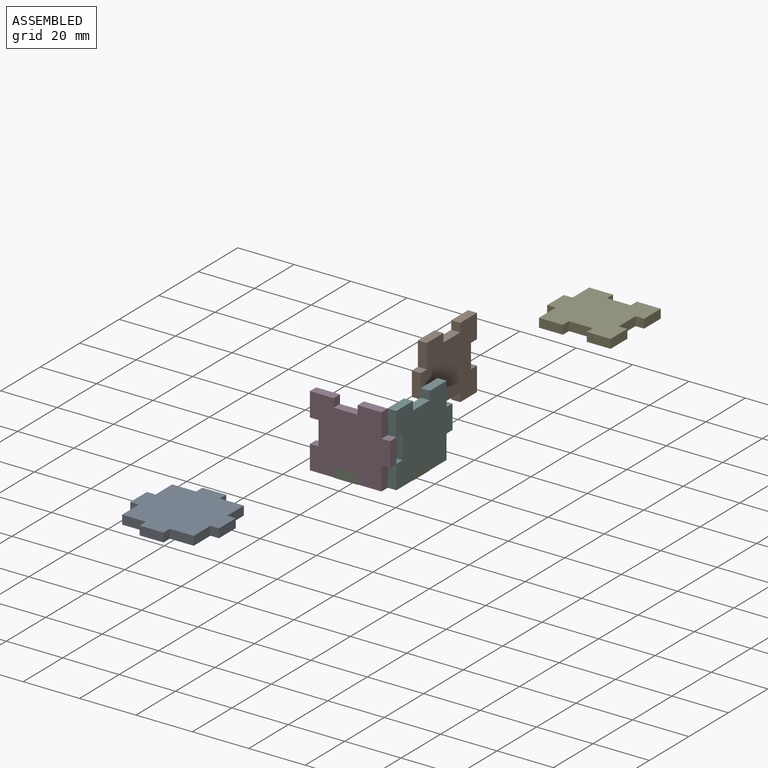
[diagram: assembled view]
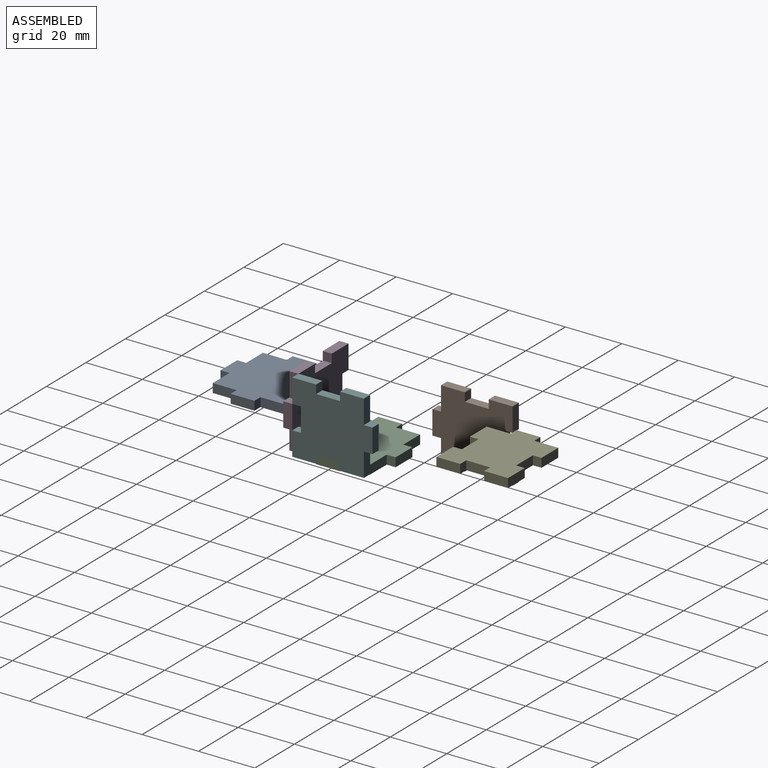
[diagram: assembled view, second angle]
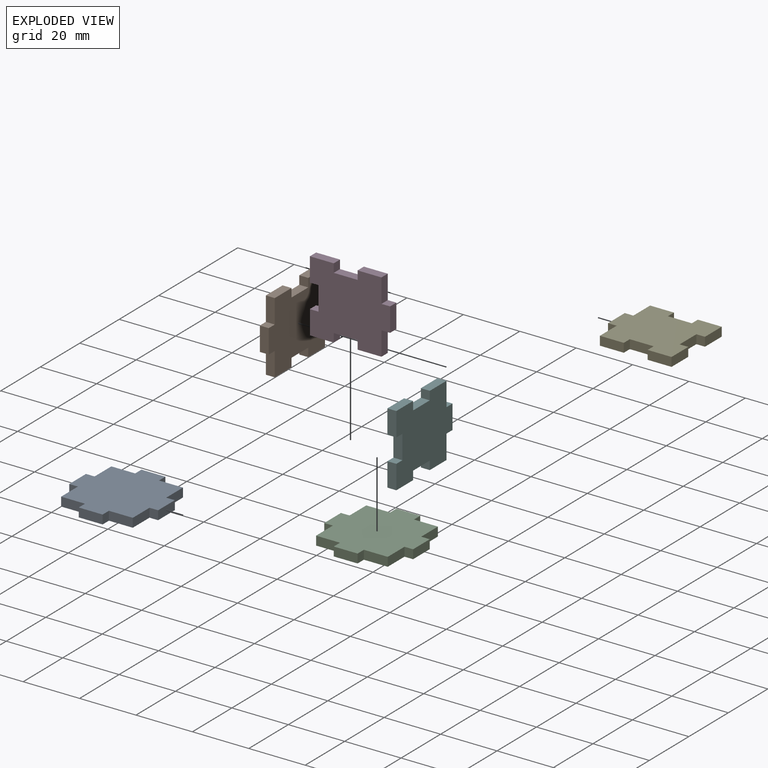
[diagram: exploded view]
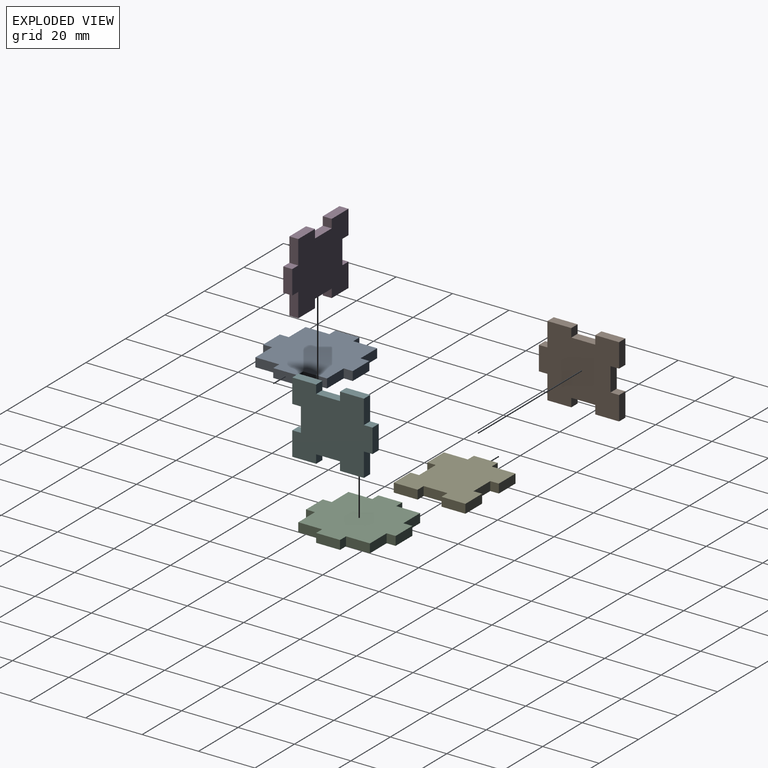
[diagram: exploded view, second angle]
ASSEMBLY  parts=6 mates=2
PART A: 22 faces, bbox 31.5x31.8x3.2 mm
  f0: plane 8.47x3.18mm, normal (1,0,0), area 26.9mm2, adj f1,f19,f20,f21
  f1: plane 3.18x3.05mm, normal (0,-1,0), area 9.7mm2, adj f0,f2,f20,f21
  f2: plane 8.47x3.18mm, normal (1,0,0), area 26.9mm2, adj f1,f3,f20,f21
  f3: plane 3.18x3.05mm, normal (0,1,0), area 9.7mm2, adj f2,f4,f20,f21
  f4: plane 8.47x3.18mm, normal (1,0,0), area 26.9mm2, adj f3,f5,f20,f21
  f5: plane 8.47x3.18mm, normal (0,1,0), area 26.9mm2, adj f4,f6,f20,f21
  f6: plane 3.18x3.18mm, normal (1,0,0), area 10.1mm2, adj f5,f7,f20,f21
  f7: plane 8.47x3.18mm, normal (0,1,0), area 26.9mm2, adj f6,f8,f20,f21
  f8: plane 3.18x3.18mm, normal (-1,0,0), area 10.1mm2, adj f7,f9,f20,f21
  f9: plane 8.47x3.18mm, normal (0,1,0), area 26.9mm2, adj f8,f10,f20,f21
  f10: plane 8.47x3.18mm, normal (-1,0,0), area 26.9mm2, adj f9,f11,f20,f21
  f11: plane 3.18x3.05mm, normal (0,1,0), area 9.7mm2, adj f10,f12,f20,f21
  f12: plane 8.47x3.18mm, normal (-1,0,0), area 26.9mm2, adj f11,f13,f20,f21
  f13: plane 3.18x3.05mm, normal (0,-1,0), area 9.7mm2, adj f12,f14,f20,f21
  f14: plane 8.47x3.18mm, normal (-1,0,0), area 26.9mm2, adj f13,f15,f20,f21
  f15: plane 8.47x3.18mm, normal (0,-1,0), area 26.9mm2, adj f14,f16,f20,f21
  f16: plane 3.18x3.18mm, normal (-1,0,0), area 10.1mm2, adj f15,f17,f20,f21
  f17: plane 8.47x3.18mm, normal (0,-1,0), area 26.9mm2, adj f16,f18,f20,f21
  f18: plane 3.18x3.18mm, normal (1,0,0), area 10.1mm2, adj f17,f19,f20,f21
  f19: plane 8.47x3.18mm, normal (0,-1,0), area 26.9mm2, adj f0,f18,f20,f21
  f20: plane 31.75x31.5mm, normal (0,0,1), area 750.5mm2, adj f0,f1,f2,f3,f4,f5,f6,f7
  f21: plane 31.75x31.5mm, normal (0,0,-1), area 750.5mm2, adj f0,f1,f2,f3,f4,f5,f6,f7
PART B: 22 faces, bbox 28.4x25.4x3.2 mm
  f0: plane 3.18x3.05mm, normal (1,0,0), area 9.7mm2, adj f1,f19,f20,f21
  f1: plane 8.47x3.18mm, normal (0,1,0), area 26.9mm2, adj f0,f2,f20,f21
  f2: plane 8.47x3.18mm, normal (-1,0,0), area 26.9mm2, adj f1,f3,f20,f21
  f3: plane 3.18x3.05mm, normal (0,-1,0), area 9.7mm2, adj f2,f4,f20,f21
  f4: plane 8.47x3.18mm, normal (-1,0,0), area 26.9mm2, adj f3,f5,f20,f21
  f5: plane 3.18x3.05mm, normal (0,1,0), area 9.7mm2, adj f4,f6,f20,f21
  f6: plane 8.47x3.18mm, normal (-1,0,0), area 26.9mm2, adj f5,f7,f20,f21
  f7: plane 8.47x3.18mm, normal (0,-1,0), area 26.9mm2, adj f6,f8,f20,f21
  f8: plane 3.18x3.05mm, normal (1,0,0), area 9.7mm2, adj f7,f9,f20,f21
  f9: plane 8.47x3.18mm, normal (0,-1,0), area 26.9mm2, adj f8,f10,f20,f21
  f10: plane 3.18x3.05mm, normal (-1,0,0), area 9.7mm2, adj f9,f11,f20,f21
  f11: plane 8.47x3.18mm, normal (0,-1,0), area 26.9mm2, adj f10,f12,f20,f21
  f12: plane 8.47x3.18mm, normal (1,0,0), area 26.9mm2, adj f11,f13,f20,f21
  f13: plane 3.18x3.05mm, normal (0,-1,0), area 9.7mm2, adj f12,f14,f20,f21
  f14: plane 8.47x3.18mm, normal (1,0,0), area 26.9mm2, adj f13,f15,f20,f21
  f15: plane 3.18x3.05mm, normal (0,1,0), area 9.7mm2, adj f14,f16,f20,f21
  f16: plane 8.47x3.18mm, normal (1,0,0), area 26.9mm2, adj f15,f17,f20,f21
  f17: plane 8.47x3.18mm, normal (0,1,0), area 26.9mm2, adj f16,f18,f20,f21
  f18: plane 3.18x3.05mm, normal (-1,0,0), area 9.7mm2, adj f17,f19,f20,f21
  f19: plane 8.47x3.18mm, normal (0,1,0), area 26.9mm2, adj f0,f18,f20,f21
  f20: plane 28.45x25.4mm, normal (0,0,1), area 593.5mm2, adj f0,f1,f2,f3,f4,f5,f6,f7
  f21: plane 28.45x25.4mm, normal (0,0,-1), area 593.5mm2, adj f0,f1,f2,f3,f4,f5,f6,f7
PART C: same geometry as A
PART D: same geometry as B
PART E: same geometry as B
PART F: same geometry as B
PLACE A t=(-99.84,-79.3,12.03)mm
PLACE B rot(axis=(0.58,-0.58,-0.58),120deg) t=(-69.71,-0.65,28.47)mm
PLACE C t=(-67.93,-26.61,18.91)mm
PLACE D rot(axis=(-1,0,0),90deg) t=(-53.43,-42.49,36.63)mm
PLACE E rot(axis=(0,0,1),180deg) t=(-52.41,48.28,44.83)mm
PLACE F rot(axis=(-0.58,-0.58,0.58),120deg) t=(-52.18,-12.12,36.63)mm
MATE fastened D.f19 <-> C.f20  axis (0,0,-1) through (-67.93,-42.49,22.09)mm
MATE fastened F.f19 <-> C.f20  axis (0,0,-1) through (-52.18,-26.61,22.09)mm
